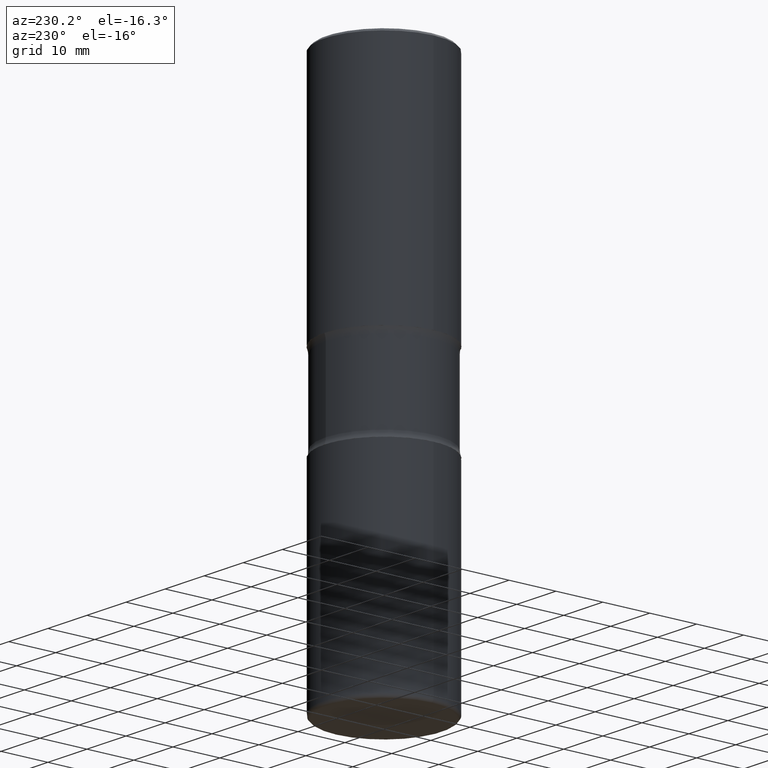
[diagram: clean part render]
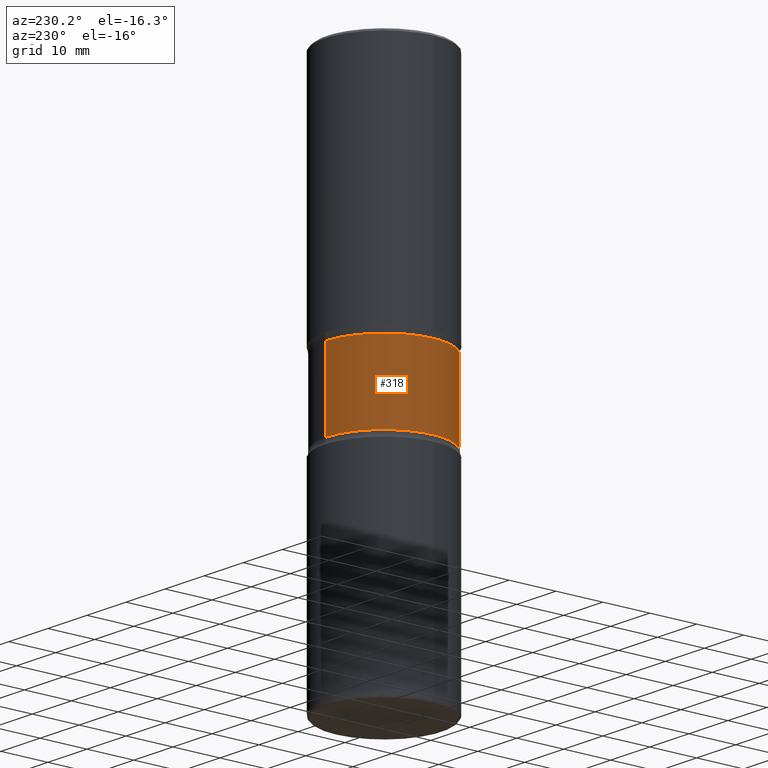
[diagram: same view with one face highlighted and labeled with its STEP entity id]
A machine part, auxiliary view. The second image highlights one B-rep face of the part: STEP entity #318.
In plain terms, the highlighted cylindrical surface (partial cylindrical patch) has radius 12.4206 mm, axis along (0, -0, -1).
Its self-contained STEP definition (entity closure, byte-faithful):
#35 = AXIS2_PLACEMENT_3D ( 'NONE', #289, #477, #262 ) ;
#36 = CARTESIAN_POINT ( 'NONE',  ( 5.033067857215771356E-29, -7.138008856206666499E-15, -2.051273774973178643 ) ) ;
#46 = CYLINDRICAL_SURFACE ( 'NONE', #256, 0.4890000000000000457 ) ;
#55 = VERTEX_POINT ( 'NONE', #398 ) ;
#65 = VECTOR ( 'NONE', #68, 39.37007874015748143 ) ;
#68 = DIRECTION ( 'NONE',  ( 2.421508309250029379E-29, -3.525794134201012972E-15, -1.000000000000000000 ) ) ;
#102 = VERTEX_POINT ( 'NONE', #196 ) ;
#128 = ORIENTED_EDGE ( 'NONE', *, *, #322, .F. ) ;
#137 = FACE_OUTER_BOUND ( 'NONE', #342, .T. ) ;
#166 = VERTEX_POINT ( 'NONE', #409 ) ;
#169 = ORIENTED_EDGE ( 'NONE', *, *, #446, .F. ) ;
#178 = DIRECTION ( 'NONE',  ( 2.421508309250029379E-29, -3.525794134201012972E-15, -1.000000000000000000 ) ) ;
#180 = CARTESIAN_POINT ( 'NONE',  ( -3.354783520910168989E-15, -0.4890000000000158109, -4.499999999999999112 ) ) ;
#196 = CARTESIAN_POINT ( 'NONE',  ( 3.414668749388650307E-15, 0.4889999999999906088, -2.698726225026824466 ) ) ;
#198 = LINE ( 'NONE', #371, #65 ) ;
#200 = EDGE_CURVE ( 'NONE', #55, #102, #198, .T. ) ;
#212 = AXIS2_PLACEMENT_3D ( 'NONE', #36, #479, #473 ) ;
#220 = CIRCLE ( 'NONE', #212, 0.4889999999999999347 ) ;
#256 = AXIS2_PLACEMENT_3D ( 'NONE', #387, #397, #420 ) ;
#262 = DIRECTION ( 'NONE',  ( 6.982962677686265133E-15, 1.000000000000000000, -3.351960728422408359E-15 ) ) ;
#288 = EDGE_CURVE ( 'NONE', #166, #55, #220, .T. ) ;
#289 = CARTESIAN_POINT ( 'NONE',  ( 6.600879344864962376E-29, -9.420792906779880886E-15, -2.698726225026823133 ) ) ;
#318 = ADVANCED_FACE ( 'NONE', ( #137 ), #46, .T. ) ;
#322 = EDGE_CURVE ( 'NONE', #348, #102, #367, .T. ) ;
#342 = EDGE_LOOP ( 'NONE', ( #169, #384, #353, #128 ) ) ;
#348 = VERTEX_POINT ( 'NONE', #517 ) ;
#353 = ORIENTED_EDGE ( 'NONE', *, *, #200, .T. ) ;
#367 = CIRCLE ( 'NONE', #35, 0.4890000000000000457 ) ;
#371 = CARTESIAN_POINT ( 'NONE',  ( 3.414668749388694089E-15, 0.4889999999999842806, -4.500000000000002665 ) ) ;
#384 = ORIENTED_EDGE ( 'NONE', *, *, #288, .T. ) ;
#387 = CARTESIAN_POINT ( 'NONE',  ( 1.096267875819667930E-28, -1.577171341667042581E-14, -4.500000000000000888 ) ) ;
#397 = DIRECTION ( 'NONE',  ( 2.421508309250029379E-29, -3.525794134201012578E-15, -1.000000000000000000 ) ) ;
#398 = CARTESIAN_POINT ( 'NONE',  ( 3.414668749388634135E-15, 0.4889999999999927738, -2.051273774973179975 ) ) ;
#401 = VECTOR ( 'NONE', #178, 39.37007874015748143 ) ;
#409 = CARTESIAN_POINT ( 'NONE',  ( -3.392516259897974288E-15, -0.4890000000000071512, -2.051273774973176867 ) ) ;
#420 = DIRECTION ( 'NONE',  ( 6.982962677686265133E-15, 1.000000000000000000, -3.351960728422408359E-15 ) ) ;
#446 = EDGE_CURVE ( 'NONE', #166, #348, #540, .T. ) ;
#473 = DIRECTION ( 'NONE',  ( 6.982962677686265922E-15, 1.000000000000000000, -3.351960728422409147E-15 ) ) ;
#477 = DIRECTION ( 'NONE',  ( 2.421508309250029379E-29, -3.525794134201012578E-15, -1.000000000000000000 ) ) ;
#479 = DIRECTION ( 'NONE',  ( 2.421508309250029379E-29, -3.525794134201012578E-15, -1.000000000000000000 ) ) ;
#517 = CARTESIAN_POINT ( 'NONE',  ( -3.392516259897956538E-15, -0.4890000000000094271, -2.698726225026821357 ) ) ;
#540 = LINE ( 'NONE', #180, #401 ) ;